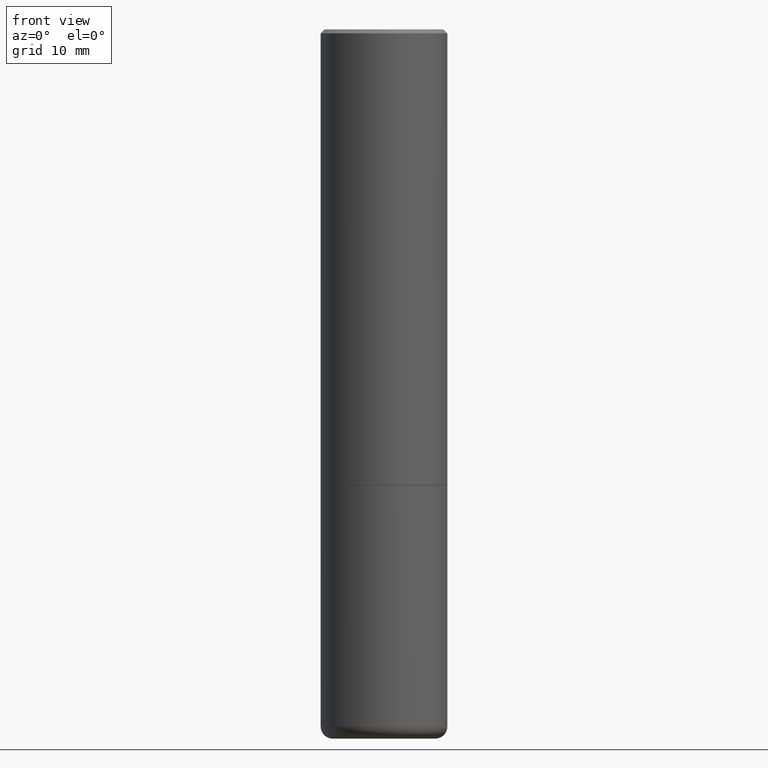
[diagram: clean part render]
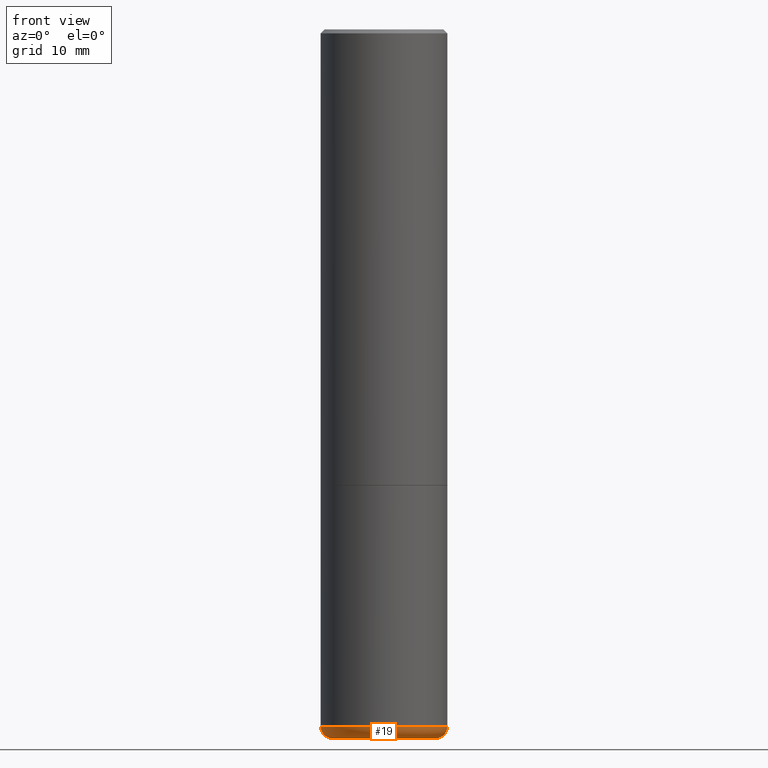
[diagram: same view with one face highlighted and labeled with its STEP entity id]
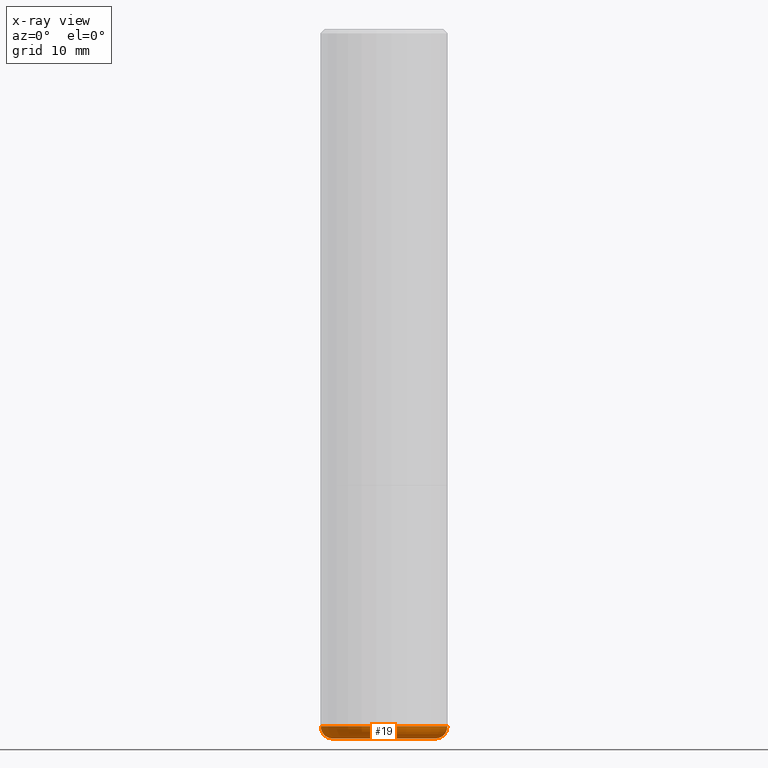
[diagram: x-ray of the same camera — body ghosted, the highlighted face saturated]
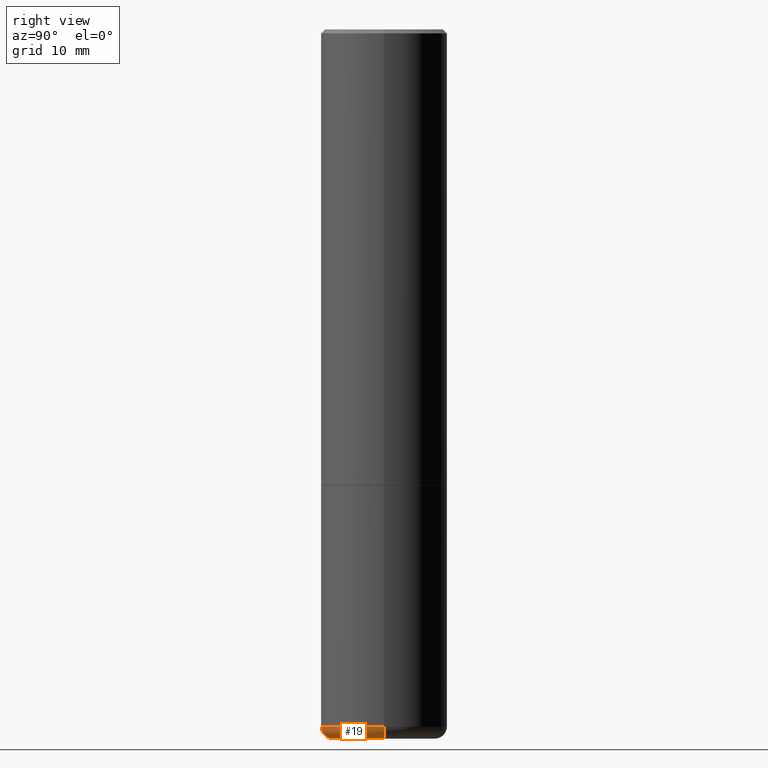
[diagram: same view with one face highlighted and labeled with its STEP entity id]
A machine part, front view. The second image highlights one B-rep face of the part: STEP entity #19.
The next image is the same camera in x-ray: the body ghosted, the highlighted face saturated — about 0% of this face is hidden behind the body in this view.
A second angle (right view) of the same face is appended — the face is thin or edge-on in the first view.
In plain terms, the highlighted toroidal blend (fillet) surface has major radius 6.4135 mm and minor (blend) radius 1.524 mm.
Its self-contained STEP definition (entity closure, byte-faithful):
#8 = VERTEX_POINT ( 'NONE', #393 ) ;
#19 = ADVANCED_FACE ( 'NONE', ( #397 ), #74, .T. ) ;
#24 = DIRECTION ( 'NONE',  ( 1.000000000000000000, -6.982962677686269077E-15, 0.000000000000000000 ) ) ;
#32 = CARTESIAN_POINT ( 'NONE',  ( 0.2525000000000000022, -1.377389388173620432E-14, -3.439999999999999947 ) ) ;
#35 = DIRECTION ( 'NONE',  ( 1.000000000000000000, -6.982962677686264344E-15, 4.883557194083111780E-29 ) ) ;
#40 = DIRECTION ( 'NONE',  ( -1.000000000000000000, 7.105427357600997914E-15, 0.000000000000000000 ) ) ;
#47 = DIRECTION ( 'NONE',  ( -2.445468806185136597E-29, 3.491481338843145583E-15, 1.000000000000000000 ) ) ;
#62 = CIRCLE ( 'NONE', #261, 0.05999999999999966471 ) ;
#74 = TOROIDAL_SURFACE ( 'NONE', #137, 0.2525000000000000022, 0.05999999999999968553 ) ;
#80 = ORIENTED_EDGE ( 'NONE', *, *, #264, .T. ) ;
#84 = CARTESIAN_POINT ( 'NONE',  ( 8.412412693276869938E-29, -1.201069580562042103E-14, -3.439999999999999947 ) ) ;
#110 = DIRECTION ( 'NONE',  ( -2.445468806185136597E-29, 3.491481338843145583E-15, 1.000000000000000000 ) ) ;
#119 = VERTEX_POINT ( 'NONE', #377 ) ;
#127 = CARTESIAN_POINT ( 'NONE',  ( 8.559140821647976968E-29, -1.222018468595100619E-14, -3.499999999999999112 ) ) ;
#129 = CARTESIAN_POINT ( 'NONE',  ( -0.3124999999999998890, -9.790249756370109522E-15, -3.439999999999999947 ) ) ;
#137 = AXIS2_PLACEMENT_3D ( 'NONE', #181, #110, #35 ) ;
#169 = AXIS2_PLACEMENT_3D ( 'NONE', #127, #47, #248 ) ;
#170 = EDGE_CURVE ( 'NONE', #171, #119, #232, .T. ) ;
#171 = VERTEX_POINT ( 'NONE', #403 ) ;
#173 = DIRECTION ( 'NONE',  ( 1.000000000000000000, -6.982962677686275388E-15, 0.000000000000000000 ) ) ;
#181 = CARTESIAN_POINT ( 'NONE',  ( 8.412412693276869938E-29, -1.201069580562042103E-14, -3.439999999999999947 ) ) ;
#190 = CIRCLE ( 'NONE', #199, 0.05999999999999966471 ) ;
#199 = AXIS2_PLACEMENT_3D ( 'NONE', #325, #359, #40 ) ;
#216 = EDGE_CURVE ( 'NONE', #308, #8, #265, .T. ) ;
#224 = DIRECTION ( 'NONE',  ( -2.445468806185136597E-29, 3.491481338843145583E-15, 1.000000000000000000 ) ) ;
#232 = CIRCLE ( 'NONE', #169, 0.2525000000000000022 ) ;
#248 = DIRECTION ( 'NONE',  ( 1.000000000000000000, -6.982962677686269866E-15, 0.000000000000000000 ) ) ;
#261 = AXIS2_PLACEMENT_3D ( 'NONE', #32, #380, #173 ) ;
#264 = EDGE_CURVE ( 'NONE', #119, #8, #62, .T. ) ;
#265 = CIRCLE ( 'NONE', #343, 0.3125000000000000000 ) ;
#269 = EDGE_LOOP ( 'NONE', ( #374, #347, #80, #293 ) ) ;
#293 = ORIENTED_EDGE ( 'NONE', *, *, #216, .F. ) ;
#308 = VERTEX_POINT ( 'NONE', #129 ) ;
#325 = CARTESIAN_POINT ( 'NONE',  ( -0.2525000000000000022, -1.021657539782616686E-14, -3.439999999999999947 ) ) ;
#343 = AXIS2_PLACEMENT_3D ( 'NONE', #84, #224, #24 ) ;
#347 = ORIENTED_EDGE ( 'NONE', *, *, #170, .T. ) ;
#359 = DIRECTION ( 'NONE',  ( 7.105427357601001859E-15, 1.000000000000000000, -3.491481338843145583E-15 ) ) ;
#374 = ORIENTED_EDGE ( 'NONE', *, *, #385, .F. ) ;
#377 = CARTESIAN_POINT ( 'NONE',  ( 0.2525000000000000022, -1.398338276206678948E-14, -3.499999999999999112 ) ) ;
#380 = DIRECTION ( 'NONE',  ( -6.982962677686266711E-15, -1.000000000000000000, 3.491481338843145583E-15 ) ) ;
#385 = EDGE_CURVE ( 'NONE', #171, #308, #190, .T. ) ;
#393 = CARTESIAN_POINT ( 'NONE',  ( 0.3124999999999998890, -1.419287164239737937E-14, -3.439999999999999947 ) ) ;
#397 = FACE_OUTER_BOUND ( 'NONE', #269, .T. ) ;
#403 = CARTESIAN_POINT ( 'NONE',  ( -0.2525000000000000022, -1.010815701726343156E-14, -3.499999999999999112 ) ) ;